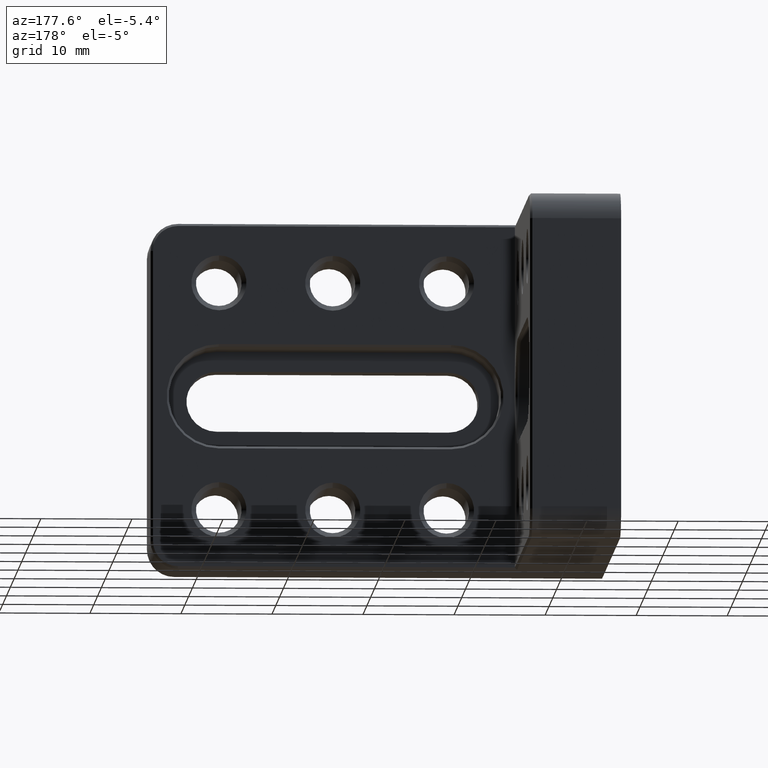
[diagram: clean part render]
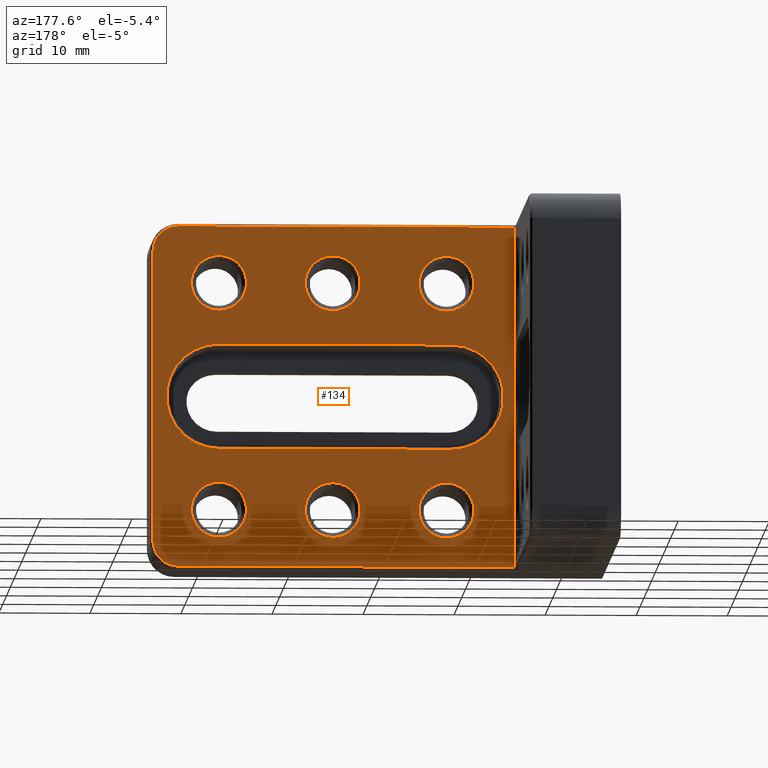
[diagram: same view with one face highlighted and labeled with its STEP entity id]
A machine part, auxiliary view. The second image highlights one B-rep face of the part: STEP entity #134.
In plain terms, the highlighted planar face has unit normal (0, 1, 0).
Its self-contained STEP definition (entity closure, byte-faithful):
#19 = EDGE_CURVE ( 'NONE', #1762, #1322, #1664, .T. ) ;
#40 = CIRCLE ( 'NONE', #1641, 3.024999999999999911 ) ;
#42 = CARTESIAN_POINT ( 'NONE',  ( -15.00000000000000355, 10.00000000000000000, 18.75000000000000000 ) ) ;
#49 = EDGE_CURVE ( 'NONE', #1708, #1708, #1284, .T. ) ;
#62 = EDGE_LOOP ( 'NONE', ( #73, #188, #629, #2078, #1491, #352 ) ) ;
#63 = CARTESIAN_POINT ( 'NONE',  ( -8.000000000000000000, 10.00000000000000000, 5.750000000000045297 ) ) ;
#71 = FACE_OUTER_BOUND ( 'NONE', #62, .T. ) ;
#73 = ORIENTED_EDGE ( 'NONE', *, *, #1900, .T. ) ;
#96 = AXIS2_PLACEMENT_3D ( 'NONE', #1994, #540, #969 ) ;
#97 = CARTESIAN_POINT ( 'NONE',  ( -7.500000000000003553, 10.00000000000000178, 15.52500000000000036 ) ) ;
#105 = VERTEX_POINT ( 'NONE', #97 ) ;
#108 = AXIS2_PLACEMENT_3D ( 'NONE', #1588, #804, #651 ) ;
#110 = EDGE_CURVE ( 'NONE', #105, #105, #638, .T. ) ;
#134 = ADVANCED_FACE ( 'NONE', ( #1589, #1704, #569, #763, #1695, #1868, #233, #71 ), #2070, .T. ) ;
#140 = DIRECTION ( 'NONE',  ( -9.130123557772670799E-17, 0.000000000000000000, -1.000000000000000000 ) ) ;
#158 = EDGE_CURVE ( 'NONE', #420, #655, #1034, .T. ) ;
#186 = CARTESIAN_POINT ( 'NONE',  ( 24.74999999999999645, 10.00000000000000000, -16.00000000000000000 ) ) ;
#188 = ORIENTED_EDGE ( 'NONE', *, *, #158, .T. ) ;
#227 = DIRECTION ( 'NONE',  ( 0.000000000000000000, 0.000000000000000000, 1.000000000000000000 ) ) ;
#228 = VERTEX_POINT ( 'NONE', #1536 ) ;
#229 = EDGE_LOOP ( 'NONE', ( #510 ) ) ;
#233 = FACE_BOUND ( 'NONE', #1316, .T. ) ;
#236 = ORIENTED_EDGE ( 'NONE', *, *, #1364, .T. ) ;
#243 = CARTESIAN_POINT ( 'NONE',  ( 0.000000000000000000, 10.00000000000000000, 0.000000000000000000 ) ) ;
#252 = DIRECTION ( 'NONE',  ( -0.000000000000000000, 1.000000000000000000, -0.000000000000000000 ) ) ;
#301 = AXIS2_PLACEMENT_3D ( 'NONE', #2029, #1100, #1748 ) ;
#325 = EDGE_CURVE ( 'NONE', #1566, #1573, #2093, .T. ) ;
#327 = CARTESIAN_POINT ( 'NONE',  ( -8.000000000000000000, 10.00000000000000000, 5.750000000000045297 ) ) ;
#332 = DIRECTION ( 'NONE',  ( 0.000000000000000000, 0.000000000000000000, 1.000000000000000000 ) ) ;
#336 = VECTOR ( 'NONE', #1749, 1000.000000000000000 ) ;
#352 = ORIENTED_EDGE ( 'NONE', *, *, #1358, .T. ) ;
#354 = ORIENTED_EDGE ( 'NONE', *, *, #1944, .F. ) ;
#374 = EDGE_LOOP ( 'NONE', ( #1699, #1216, #236, #498 ) ) ;
#379 = DIRECTION ( 'NONE',  ( -0.000000000000000000, 1.000000000000000000, -0.000000000000000000 ) ) ;
#390 = DIRECTION ( 'NONE',  ( -0.000000000000000000, 1.000000000000000000, -0.000000000000000000 ) ) ;
#416 = DIRECTION ( 'NONE',  ( 0.000000000000000000, 1.000000000000000000, 0.000000000000000000 ) ) ;
#420 = VERTEX_POINT ( 'NONE', #1701 ) ;
#448 = CIRCLE ( 'NONE', #1711, 3.024999999999999911 ) ;
#449 = CIRCLE ( 'NONE', #108, 2.749999999999999112 ) ;
#457 = DIRECTION ( 'NONE',  ( 0.000000000000000000, 0.000000000000000000, 1.000000000000000000 ) ) ;
#488 = CARTESIAN_POINT ( 'NONE',  ( 17.49999999999999645, 10.00000000000000000, 0.000000000000000000 ) ) ;
#498 = ORIENTED_EDGE ( 'NONE', *, *, #1801, .T. ) ;
#510 = ORIENTED_EDGE ( 'NONE', *, *, #517, .F. ) ;
#517 = EDGE_CURVE ( 'NONE', #2049, #2049, #1269, .T. ) ;
#539 = VECTOR ( 'NONE', #140, 1000.000000000000000 ) ;
#540 = DIRECTION ( 'NONE',  ( 0.000000000000000000, 1.000000000000000000, 0.000000000000000000 ) ) ;
#544 = AXIS2_PLACEMENT_3D ( 'NONE', #488, #1941, #457 ) ;
#550 = DIRECTION ( 'NONE',  ( -0.000000000000000000, 1.000000000000000000, -0.000000000000000000 ) ) ;
#569 = FACE_BOUND ( 'NONE', #229, .T. ) ;
#609 = CARTESIAN_POINT ( 'NONE',  ( -7.500000000000003553, 10.00000000000000178, -9.475000000000001421 ) ) ;
#629 = ORIENTED_EDGE ( 'NONE', *, *, #796, .F. ) ;
#638 = CIRCLE ( 'NONE', #301, 3.024999999999999911 ) ;
#640 = ORIENTED_EDGE ( 'NONE', *, *, #49, .F. ) ;
#641 = CARTESIAN_POINT ( 'NONE',  ( 17.49999999999999645, 10.00000000000000000, -5.750000000000045297 ) ) ;
#650 = VECTOR ( 'NONE', #689, 1000.000000000000000 ) ;
#651 = DIRECTION ( 'NONE',  ( 0.000000000000000000, 0.000000000000000000, 1.000000000000000000 ) ) ;
#654 = LINE ( 'NONE', #1101, #539 ) ;
#655 = VERTEX_POINT ( 'NONE', #1458 ) ;
#674 = CARTESIAN_POINT ( 'NONE',  ( 4.999999999999997335, 10.00000000000000178, -9.474999999999999645 ) ) ;
#689 = DIRECTION ( 'NONE',  ( -1.369518533665900312E-16, -0.000000000000000000, -1.000000000000000000 ) ) ;
#691 = DIRECTION ( 'NONE',  ( 0.000000000000000000, 0.000000000000000000, 1.000000000000000000 ) ) ;
#717 = CARTESIAN_POINT ( 'NONE',  ( 17.49999999999999645, 10.00000000000000000, -5.750000000000045297 ) ) ;
#725 = AXIS2_PLACEMENT_3D ( 'NONE', #1439, #1415, #332 ) ;
#763 = FACE_BOUND ( 'NONE', #1117, .T. ) ;
#767 = VECTOR ( 'NONE', #1304, 1000.000000000000000 ) ;
#785 = CARTESIAN_POINT ( 'NONE',  ( 17.49999999999999645, 10.00000000000000000, 5.750000000000045297 ) ) ;
#790 = VERTEX_POINT ( 'NONE', #42 ) ;
#796 = EDGE_CURVE ( 'NONE', #790, #655, #1831, .T. ) ;
#803 = AXIS2_PLACEMENT_3D ( 'NONE', #243, #416, #1416 ) ;
#804 = DIRECTION ( 'NONE',  ( 0.000000000000000000, 1.000000000000000000, 0.000000000000000000 ) ) ;
#823 = CIRCLE ( 'NONE', #725, 5.750000000000045297 ) ;
#838 = EDGE_CURVE ( 'NONE', #228, #228, #1473, .T. ) ;
#864 = VERTEX_POINT ( 'NONE', #63 ) ;
#876 = DIRECTION ( 'NONE',  ( 0.000000000000000000, 0.000000000000000000, 1.000000000000000000 ) ) ;
#888 = DIRECTION ( 'NONE',  ( 0.000000000000000000, 0.000000000000000000, 1.000000000000000000 ) ) ;
#890 = VERTEX_POINT ( 'NONE', #186 ) ;
#905 = DIRECTION ( 'NONE',  ( 0.000000000000000000, 0.000000000000000000, 1.000000000000000000 ) ) ;
#933 = CARTESIAN_POINT ( 'NONE',  ( 4.999999999999997335, 10.00000000000000178, 12.49999999999999822 ) ) ;
#969 = DIRECTION ( 'NONE',  ( 0.000000000000000000, 0.000000000000000000, 1.000000000000000000 ) ) ;
#979 = LINE ( 'NONE', #1451, #336 ) ;
#1004 = CARTESIAN_POINT ( 'NONE',  ( 4.999999999999997335, 10.00000000000000178, -12.49999999999999822 ) ) ;
#1034 = LINE ( 'NONE', #2019, #1999 ) ;
#1036 = CARTESIAN_POINT ( 'NONE',  ( -15.00000000000000888, 10.00000000000000000, -19.00000000000000000 ) ) ;
#1041 = DIRECTION ( 'NONE',  ( 1.000000000000000000, 0.000000000000000000, 0.000000000000000000 ) ) ;
#1074 = ORIENTED_EDGE ( 'NONE', *, *, #1582, .F. ) ;
#1095 = VERTEX_POINT ( 'NONE', #674 ) ;
#1100 = DIRECTION ( 'NONE',  ( -0.000000000000000000, 1.000000000000000000, -0.000000000000000000 ) ) ;
#1101 = CARTESIAN_POINT ( 'NONE',  ( 24.74999999999999645, 10.00000000000000000, -16.00000000000000000 ) ) ;
#1117 = EDGE_LOOP ( 'NONE', ( #640 ) ) ;
#1130 = EDGE_LOOP ( 'NONE', ( #1925 ) ) ;
#1136 = EDGE_CURVE ( 'NONE', #1573, #1393, #1460, .T. ) ;
#1140 = CARTESIAN_POINT ( 'NONE',  ( 21.99999999999999645, 10.00000000000000000, 18.75000000000000000 ) ) ;
#1143 = LINE ( 'NONE', #327, #767 ) ;
#1171 = ORIENTED_EDGE ( 'NONE', *, *, #838, .F. ) ;
#1216 = ORIENTED_EDGE ( 'NONE', *, *, #1136, .T. ) ;
#1269 = CIRCLE ( 'NONE', #1408, 3.024999999999999911 ) ;
#1284 = CIRCLE ( 'NONE', #1792, 3.024999999999999911 ) ;
#1301 = AXIS2_PLACEMENT_3D ( 'NONE', #1989, #390, #227 ) ;
#1304 = DIRECTION ( 'NONE',  ( -1.000000000000000000, 0.000000000000000000, 0.000000000000000000 ) ) ;
#1316 = EDGE_LOOP ( 'NONE', ( #1171 ) ) ;
#1322 = VERTEX_POINT ( 'NONE', #1987 ) ;
#1358 = EDGE_CURVE ( 'NONE', #1322, #890, #654, .T. ) ;
#1359 = CARTESIAN_POINT ( 'NONE',  ( 17.49999999999999645, 10.00000000000000178, 12.50000000000000000 ) ) ;
#1364 = EDGE_CURVE ( 'NONE', #1393, #864, #1143, .T. ) ;
#1382 = EDGE_CURVE ( 'NONE', #790, #1762, #979, .T. ) ;
#1393 = VERTEX_POINT ( 'NONE', #785 ) ;
#1408 = AXIS2_PLACEMENT_3D ( 'NONE', #933, #252, #905 ) ;
#1415 = DIRECTION ( 'NONE',  ( -0.000000000000000000, -1.000000000000000000, -0.000000000000000000 ) ) ;
#1416 = DIRECTION ( 'NONE',  ( 0.000000000000000000, -0.000000000000000000, 1.000000000000000000 ) ) ;
#1439 = CARTESIAN_POINT ( 'NONE',  ( -8.000000000000000000, 10.00000000000000000, 0.000000000000000000 ) ) ;
#1451 = CARTESIAN_POINT ( 'NONE',  ( 21.99999999999999645, 10.00000000000000000, 18.75000000000000000 ) ) ;
#1458 = CARTESIAN_POINT ( 'NONE',  ( -15.00000000000000888, 10.00000000000000000, -18.75000000000000000 ) ) ;
#1460 = CIRCLE ( 'NONE', #544, 5.750000000000045297 ) ;
#1473 = CIRCLE ( 'NONE', #1301, 3.024999999999999911 ) ;
#1491 = ORIENTED_EDGE ( 'NONE', *, *, #19, .T. ) ;
#1534 = EDGE_LOOP ( 'NONE', ( #354 ) ) ;
#1536 = CARTESIAN_POINT ( 'NONE',  ( 17.49999999999999645, 10.00000000000000178, -9.475000000000001421 ) ) ;
#1566 = VERTEX_POINT ( 'NONE', #1993 ) ;
#1573 = VERTEX_POINT ( 'NONE', #717 ) ;
#1582 = EDGE_CURVE ( 'NONE', #1754, #1754, #448, .T. ) ;
#1588 = CARTESIAN_POINT ( 'NONE',  ( 21.99999999999999289, 10.00000000000000000, -16.00000000000000000 ) ) ;
#1589 = FACE_BOUND ( 'NONE', #374, .T. ) ;
#1641 = AXIS2_PLACEMENT_3D ( 'NONE', #1004, #379, #691 ) ;
#1664 = CIRCLE ( 'NONE', #96, 2.749999999999999112 ) ;
#1691 = CARTESIAN_POINT ( 'NONE',  ( -7.500000000000003553, 10.00000000000000178, -12.50000000000000000 ) ) ;
#1695 = FACE_BOUND ( 'NONE', #2092, .T. ) ;
#1699 = ORIENTED_EDGE ( 'NONE', *, *, #325, .T. ) ;
#1701 = CARTESIAN_POINT ( 'NONE',  ( 21.99999999999999289, 10.00000000000000000, -18.75000000000000000 ) ) ;
#1704 = FACE_BOUND ( 'NONE', #1130, .T. ) ;
#1708 = VERTEX_POINT ( 'NONE', #1855 ) ;
#1711 = AXIS2_PLACEMENT_3D ( 'NONE', #1691, #1972, #876 ) ;
#1717 = CARTESIAN_POINT ( 'NONE',  ( 4.999999999999997335, 10.00000000000000178, 15.52499999999999858 ) ) ;
#1748 = DIRECTION ( 'NONE',  ( 0.000000000000000000, 0.000000000000000000, 1.000000000000000000 ) ) ;
#1749 = DIRECTION ( 'NONE',  ( 1.000000000000000000, 0.000000000000000000, 0.000000000000000000 ) ) ;
#1754 = VERTEX_POINT ( 'NONE', #609 ) ;
#1762 = VERTEX_POINT ( 'NONE', #1140 ) ;
#1780 = VECTOR ( 'NONE', #1041, 1000.000000000000000 ) ;
#1792 = AXIS2_PLACEMENT_3D ( 'NONE', #1359, #550, #888 ) ;
#1801 = EDGE_CURVE ( 'NONE', #864, #1566, #823, .T. ) ;
#1831 = LINE ( 'NONE', #1036, #650 ) ;
#1855 = CARTESIAN_POINT ( 'NONE',  ( 17.49999999999999645, 10.00000000000000178, 15.52500000000000036 ) ) ;
#1859 = DIRECTION ( 'NONE',  ( -1.000000000000000000, 0.000000000000000000, 0.000000000000000000 ) ) ;
#1868 = FACE_BOUND ( 'NONE', #1534, .T. ) ;
#1900 = EDGE_CURVE ( 'NONE', #890, #420, #449, .T. ) ;
#1925 = ORIENTED_EDGE ( 'NONE', *, *, #110, .F. ) ;
#1941 = DIRECTION ( 'NONE',  ( -0.000000000000000000, -1.000000000000000000, -0.000000000000000000 ) ) ;
#1944 = EDGE_CURVE ( 'NONE', #1095, #1095, #40, .T. ) ;
#1972 = DIRECTION ( 'NONE',  ( -0.000000000000000000, 1.000000000000000000, -0.000000000000000000 ) ) ;
#1987 = CARTESIAN_POINT ( 'NONE',  ( 24.74999999999999645, 10.00000000000000000, 16.00000000000000355 ) ) ;
#1989 = CARTESIAN_POINT ( 'NONE',  ( 17.49999999999999645, 10.00000000000000178, -12.50000000000000000 ) ) ;
#1993 = CARTESIAN_POINT ( 'NONE',  ( -8.000000000000000000, 10.00000000000000000, -5.750000000000045297 ) ) ;
#1994 = CARTESIAN_POINT ( 'NONE',  ( 22.00000000000000000, 10.00000000000000000, 16.00000000000000355 ) ) ;
#1999 = VECTOR ( 'NONE', #1859, 1000.000000000000000 ) ;
#2019 = CARTESIAN_POINT ( 'NONE',  ( -15.00000000000000888, 10.00000000000000000, -18.75000000000000000 ) ) ;
#2029 = CARTESIAN_POINT ( 'NONE',  ( -7.500000000000003553, 10.00000000000000178, 12.50000000000000000 ) ) ;
#2049 = VERTEX_POINT ( 'NONE', #1717 ) ;
#2070 = PLANE ( 'NONE',  #803 ) ;
#2078 = ORIENTED_EDGE ( 'NONE', *, *, #1382, .T. ) ;
#2092 = EDGE_LOOP ( 'NONE', ( #1074 ) ) ;
#2093 = LINE ( 'NONE', #641, #1780 ) ;